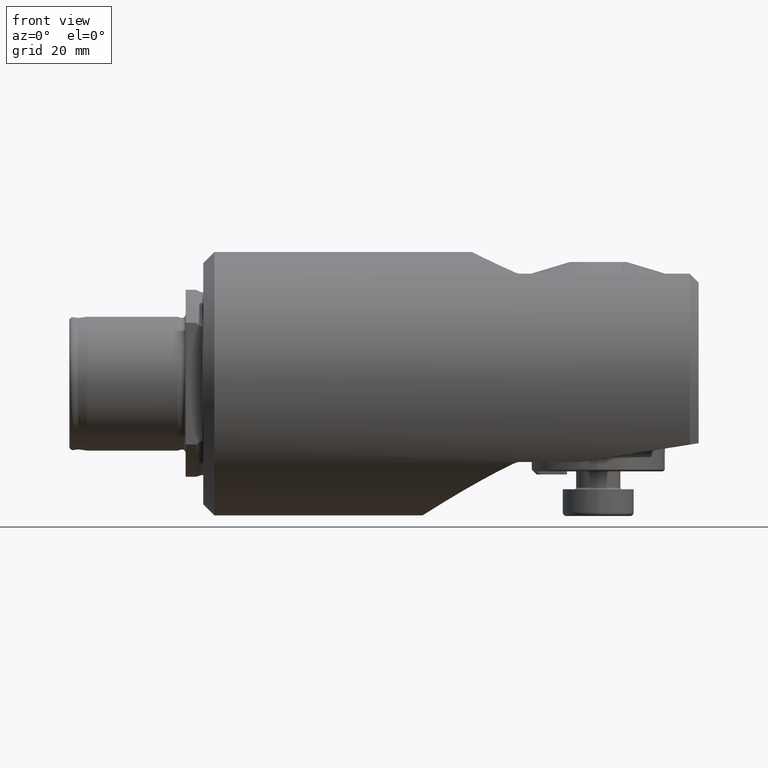
[diagram: clean part render]
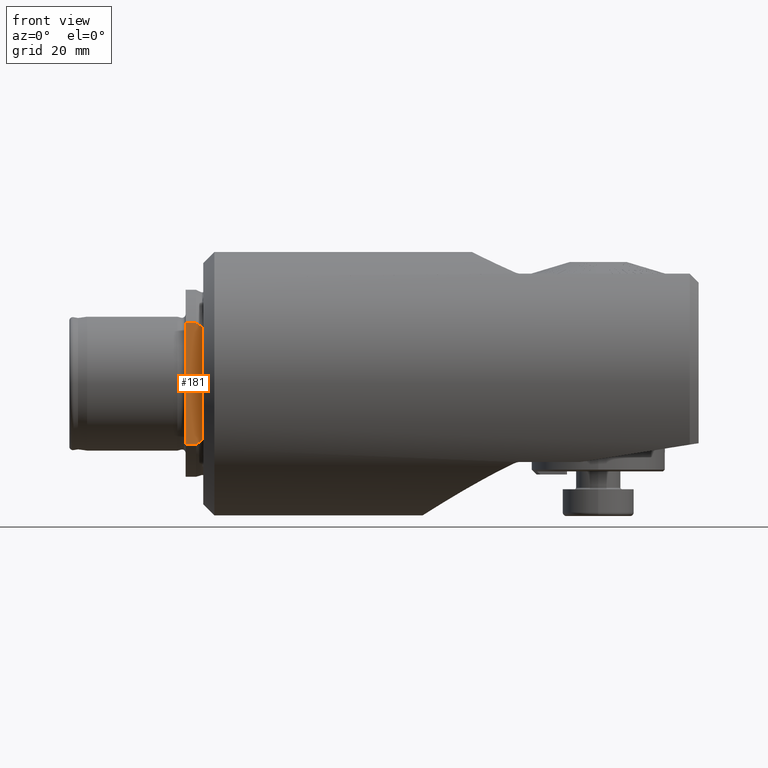
[diagram: same view with one face highlighted and labeled with its STEP entity id]
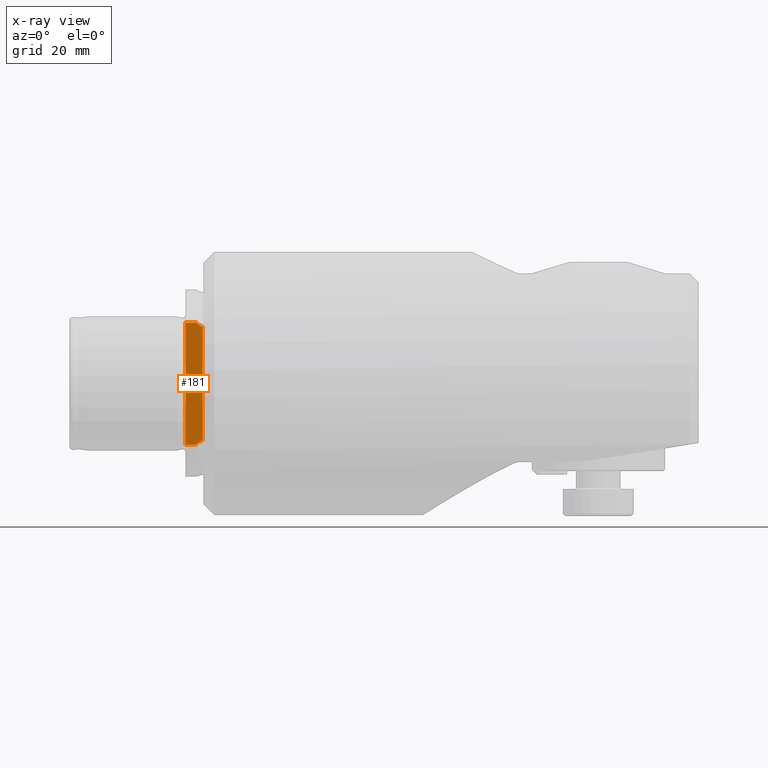
[diagram: x-ray of the same camera — body ghosted, the highlighted face saturated]
A machine part, front view. The second image highlights one B-rep face of the part: STEP entity #181.
The next image is the same camera in x-ray: the body ghosted, the highlighted face saturated — about 0% of this face is hidden behind the body in this view.
In plain terms, the highlighted planar face has unit normal (0, -1, 0).
Its self-contained STEP definition (entity closure, byte-faithful):
#181 = ADVANCED_FACE ( 'NONE', ( #26410 ), #23160, .T. ) ;
#859 = CARTESIAN_POINT ( 'NONE',  ( -111.1663407281465100, -16.00000000000000000, 12.78273402771928100 ) ) ;
#913 = CARTESIAN_POINT ( 'NONE',  ( -111.1999100790610400, -16.00000000000000000, -12.77765531666785900 ) ) ;
#995 = CARTESIAN_POINT ( 'NONE',  ( -111.3111006377023800, -16.00000000000000000, 12.77597843611212600 ) ) ;
#1052 = AXIS2_PLACEMENT_3D ( 'NONE', #23073, #15124, #21231 ) ;
#1674 = CARTESIAN_POINT ( 'NONE',  ( -111.5395361096405100, -16.00000000000000000, -12.85967606524575200 ) ) ;
#1733 = CARTESIAN_POINT ( 'NONE',  ( -112.6068345363945900, -16.00000000000000000, -13.64003757326203600 ) ) ;
#1741 = VERTEX_POINT ( 'NONE', #14380 ) ;
#1934 = CARTESIAN_POINT ( 'NONE',  ( -111.1499999999999900, -16.00000000000000000, 12.78603181265640000 ) ) ;
#1999 = VERTEX_POINT ( 'NONE', #9469 ) ;
#2985 = CARTESIAN_POINT ( 'NONE',  ( -111.2500000000003600, -16.00000000000000000, 12.77597843610900300 ) ) ;
#3528 = EDGE_LOOP ( 'NONE', ( #21684, #12792, #9793, #7668, #24933, #20826, #10161, #19807, #3932, #4412 ) ) ;
#3655 = CARTESIAN_POINT ( 'NONE',  ( -112.6068345363945900, -16.00000000000000000, -13.64003757326203600 ) ) ;
#3932 = ORIENTED_EDGE ( 'NONE', *, *, #15981, .F. ) ;
#4412 = ORIENTED_EDGE ( 'NONE', *, *, #10732, .T. ) ;
#4809 = CARTESIAN_POINT ( 'NONE',  ( -111.2164647319467300, -16.00000000000000000, 12.77682245800964500 ) ) ;
#5325 = VERTEX_POINT ( 'NONE', #19350 ) ;
#5585 = B_SPLINE_CURVE_WITH_KNOTS ( 'NONE', 3,
 ( #18440, #1674, #18539, #5916, #24494, #16562 ),
 .UNSPECIFIED., .F., .F.,
 ( 4, 2, 4 ),
 ( 0.002573778508262434000, 0.002754681159050211100, 0.002935583809837988200 ),
 .UNSPECIFIED. ) ;
#5890 = CARTESIAN_POINT ( 'NONE',  ( -111.5880946093925600, -16.00000000000000000, -12.89575899140385200 ) ) ;
#5916 = CARTESIAN_POINT ( 'NONE',  ( -111.3717434894688400, -16.00000000000000000, -12.78747104571292000 ) ) ;
#6587 = B_SPLINE_CURVE_WITH_KNOTS ( 'NONE', 3,
 ( #7386, #995, #9476, #23987, #11417, #11589 ),
 .UNSPECIFIED., .F., .F.,
 ( 4, 2, 4 ),
 ( 0.006320269940479274200, 0.006501208874998874200, 0.006682147809518474200 ),
 .UNSPECIFIED. ) ;
#7201 = EDGE_CURVE ( 'NONE', #1741, #16087, #6587, .T. ) ;
#7226 = CARTESIAN_POINT ( 'NONE',  ( -111.1499999999999900, -16.00000000000000000, -12.78603181265640000 ) ) ;
#7271 = DIRECTION ( 'NONE',  ( 0.0000000000000000000, 0.0000000000000000000, 1.000000000000000000 ) ) ;
#7358 = B_SPLINE_CURVE_WITH_KNOTS ( 'NONE', 3,
 ( #21086, #24926, #12605, #18934 ),
 .UNSPECIFIED., .F., .F.,
 ( 4, 4 ),
 ( 0.05389779840021828600, 0.05516266797834549300 ),
 .UNSPECIFIED. ) ;
#7386 = CARTESIAN_POINT ( 'NONE',  ( -111.2500000000003600, -16.00000000000000000, 12.77597843610900300 ) ) ;
#7668 = ORIENTED_EDGE ( 'NONE', *, *, #15737, .T. ) ;
#7675 = VERTEX_POINT ( 'NONE', #20944 ) ;
#7742 = EDGE_CURVE ( 'NONE', #1999, #10815, #26665, .T. ) ;
#7942 = CARTESIAN_POINT ( 'NONE',  ( -112.2654864559808100, -16.00000000000000000, -13.39468509410008100 ) ) ;
#8287 = LINE ( 'NONE', #15555, #23903 ) ;
#8295 = CARTESIAN_POINT ( 'NONE',  ( -114.9499999999999900, -16.00000000000000000, 13.64003757326206700 ) ) ;
#8391 = VERTEX_POINT ( 'NONE', #10515 ) ;
#8416 = DIRECTION ( 'NONE',  ( -1.000000000000000000, -0.0000000000000000000, -0.0000000000000000000 ) ) ;
#9035 = CARTESIAN_POINT ( 'NONE',  ( -111.2499999999999900, -16.00000000000000000, -12.77597843611207800 ) ) ;
#9217 = CARTESIAN_POINT ( 'NONE',  ( -111.2332883551766000, -15.99999999999999600, -12.77597843611208400 ) ) ;
#9469 = CARTESIAN_POINT ( 'NONE',  ( -114.9499999999999900, -16.00000000000000000, -13.64003757326203600 ) ) ;
#9476 = CARTESIAN_POINT ( 'NONE',  ( -111.3719064449746700, -16.00000000000000000, 12.78753620383459700 ) ) ;
#9793 = ORIENTED_EDGE ( 'NONE', *, *, #11583, .T. ) ;
#9916 = EDGE_CURVE ( 'NONE', #16846, #5325, #5585, .T. ) ;
#10130 = CARTESIAN_POINT ( 'NONE',  ( -111.9256196827419100, -16.00000000000000000, -13.14656765230392600 ) ) ;
#10161 = ORIENTED_EDGE ( 'NONE', *, *, #17085, .T. ) ;
#10515 = CARTESIAN_POINT ( 'NONE',  ( -111.1499999999999900, -16.00000000000000000, -12.78603181265640000 ) ) ;
#10732 = EDGE_CURVE ( 'NONE', #14639, #16846, #22443, .T. ) ;
#10815 = VERTEX_POINT ( 'NONE', #8295 ) ;
#10921 = CARTESIAN_POINT ( 'NONE',  ( -114.9499999999999900, -16.00000000000000000, -13.64003757326203600 ) ) ;
#11187 = CARTESIAN_POINT ( 'NONE',  ( -111.1499999999999900, -16.00000000000000000, 12.78603181265640000 ) ) ;
#11290 = CARTESIAN_POINT ( 'NONE',  ( -111.1499999999999900, -16.00000000000000000, -13.64003757326203600 ) ) ;
#11417 = CARTESIAN_POINT ( 'NONE',  ( -111.5393917999807600, -16.00000000000000000, 12.85956883139750300 ) ) ;
#11583 = EDGE_CURVE ( 'NONE', #8391, #23441, #16793, .T. ) ;
#11589 = CARTESIAN_POINT ( 'NONE',  ( -111.5880946093925600, -16.00000000000000000, 12.89575899140384900 ) ) ;
#12168 = CARTESIAN_POINT ( 'NONE',  ( -26.72701381818720600, -16.00000000000000000, -13.64003757326203600 ) ) ;
#12605 = CARTESIAN_POINT ( 'NONE',  ( -112.2654966713065900, -16.00000000000000000, 13.39469243662126100 ) ) ;
#12785 = EDGE_CURVE ( 'NONE', #16087, #7675, #7358, .T. ) ;
#12792 = ORIENTED_EDGE ( 'NONE', *, *, #26310, .T. ) ;
#12997 = B_SPLINE_CURVE_WITH_KNOTS ( 'NONE', 3,
 ( #11187, #859, #23685, #4809, #19423, #2985 ),
 .UNSPECIFIED., .F., .F.,
 ( 4, 2, 4 ),
 ( 0.006220962795585129900, 0.006270616368032201600, 0.006320269940479274200 ),
 .UNSPECIFIED. ) ;
#13243 = CARTESIAN_POINT ( 'NONE',  ( -111.1666215987717700, -16.00000000000000400, -12.78267734414259000 ) ) ;
#14304 = CARTESIAN_POINT ( 'NONE',  ( -111.5880946093925600, -16.00000000000000000, -12.89575899140385200 ) ) ;
#14380 = CARTESIAN_POINT ( 'NONE',  ( -111.2500000000003600, -16.00000000000000000, 12.77597843610900300 ) ) ;
#14639 = VERTEX_POINT ( 'NONE', #3655 ) ;
#15000 = CARTESIAN_POINT ( 'NONE',  ( -111.5880946093925600, -16.00000000000000000, 12.89575899140384900 ) ) ;
#15124 = DIRECTION ( 'NONE',  ( 0.0000000000000000000, -1.000000000000000000, 0.0000000000000000000 ) ) ;
#15460 = DIRECTION ( 'NONE',  ( -1.000000000000000000, -0.0000000000000000000, -0.0000000000000000000 ) ) ;
#15555 = CARTESIAN_POINT ( 'NONE',  ( -26.72701381818720600, -16.00000000000002100, 13.64003757326204500 ) ) ;
#15737 = EDGE_CURVE ( 'NONE', #23441, #1741, #12997, .T. ) ;
#15981 = EDGE_CURVE ( 'NONE', #14639, #1999, #23618, .T. ) ;
#16087 = VERTEX_POINT ( 'NONE', #15000 ) ;
#16562 = CARTESIAN_POINT ( 'NONE',  ( -111.2499999999999900, -16.00000000000000000, -12.77597843611207800 ) ) ;
#16793 = LINE ( 'NONE', #11290, #20631 ) ;
#16846 = VERTEX_POINT ( 'NONE', #14304 ) ;
#17085 = EDGE_CURVE ( 'NONE', #7675, #10815, #8287, .T. ) ;
#18440 = CARTESIAN_POINT ( 'NONE',  ( -111.5880946093925600, -16.00000000000000000, -12.89575899140385200 ) ) ;
#18539 = CARTESIAN_POINT ( 'NONE',  ( -111.4855216483448900, -16.00000000000000000, -12.82917673443717100 ) ) ;
#18934 = CARTESIAN_POINT ( 'NONE',  ( -112.6068345363945900, -16.00000000000002100, 13.64003757326204500 ) ) ;
#19180 = VECTOR ( 'NONE', #7271, 1000.000000000000000 ) ;
#19350 = CARTESIAN_POINT ( 'NONE',  ( -111.2499999999999900, -16.00000000000000000, -12.77597843611207800 ) ) ;
#19423 = CARTESIAN_POINT ( 'NONE',  ( -111.2332326583071400, -16.00000000000000000, 12.77597843611207100 ) ) ;
#19807 = ORIENTED_EDGE ( 'NONE', *, *, #7742, .F. ) ;
#20631 = VECTOR ( 'NONE', #21797, 1000.000000000000000 ) ;
#20826 = ORIENTED_EDGE ( 'NONE', *, *, #12785, .T. ) ;
#20944 = CARTESIAN_POINT ( 'NONE',  ( -112.6068345363945900, -16.00000000000002100, 13.64003757326204500 ) ) ;
#21086 = CARTESIAN_POINT ( 'NONE',  ( -111.5880946093925600, -16.00000000000000000, 12.89575899140384900 ) ) ;
#21231 = DIRECTION ( 'NONE',  ( 0.0000000000000000000, -0.0000000000000000000, -1.000000000000000000 ) ) ;
#21684 = ORIENTED_EDGE ( 'NONE', *, *, #9916, .T. ) ;
#21797 = DIRECTION ( 'NONE',  ( -0.0000000000000000000, 0.0000000000000000000, 1.000000000000000000 ) ) ;
#22443 = B_SPLINE_CURVE_WITH_KNOTS ( 'NONE', 3,
 ( #1733, #7942, #10130, #5890 ),
 .UNSPECIFIED., .F., .F.,
 ( 4, 4 ),
 ( 0.01926500749910044900, 0.02052343312895343900 ),
 .UNSPECIFIED. ) ;
#23073 = CARTESIAN_POINT ( 'NONE',  ( -26.72701381818720600, -16.00000000000000000, -13.64003757326203600 ) ) ;
#23160 = PLANE ( 'NONE',  #1052 ) ;
#23441 = VERTEX_POINT ( 'NONE', #1934 ) ;
#23618 = LINE ( 'NONE', #12168, #25905 ) ;
#23685 = CARTESIAN_POINT ( 'NONE',  ( -111.1829277031027300, -16.00000000000000000, 12.78020834609197300 ) ) ;
#23903 = VECTOR ( 'NONE', #15460, 1000.000000000000000 ) ;
#23987 = CARTESIAN_POINT ( 'NONE',  ( -111.4852698070341400, -16.00000000000000000, 12.82907899923877100 ) ) ;
#24494 = CARTESIAN_POINT ( 'NONE',  ( -111.3104567551598100, -16.00000000000000000, -12.77597843611208500 ) ) ;
#24926 = CARTESIAN_POINT ( 'NONE',  ( -111.9258348362359100, -16.00000000000000000, 13.14672752889970300 ) ) ;
#24933 = ORIENTED_EDGE ( 'NONE', *, *, #7201, .T. ) ;
#25754 = B_SPLINE_CURVE_WITH_KNOTS ( 'NONE', 3,
 ( #9035, #9217, #913, #13243, #7226 ),
 .UNSPECIFIED., .F., .F.,
 ( 4, 1, 4 ),
 ( 0.002935583809837988200, 0.002985589484796585100, 0.003035595159755181600 ),
 .UNSPECIFIED. ) ;
#25905 = VECTOR ( 'NONE', #8416, 1000.000000000000000 ) ;
#26310 = EDGE_CURVE ( 'NONE', #5325, #8391, #25754, .T. ) ;
#26410 = FACE_OUTER_BOUND ( 'NONE', #3528, .T. ) ;
#26665 = LINE ( 'NONE', #10921, #19180 ) ;